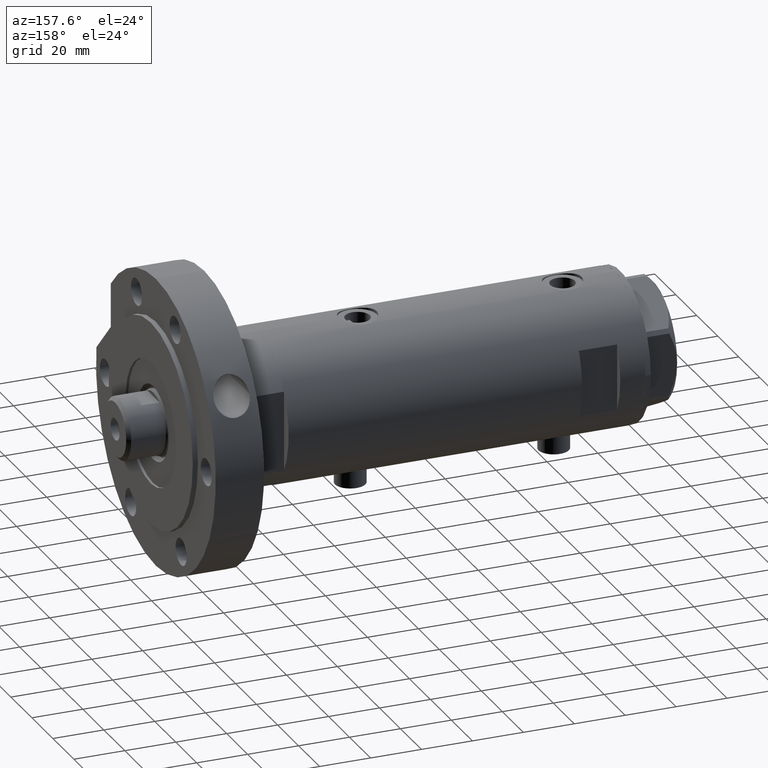
[diagram: clean part render]
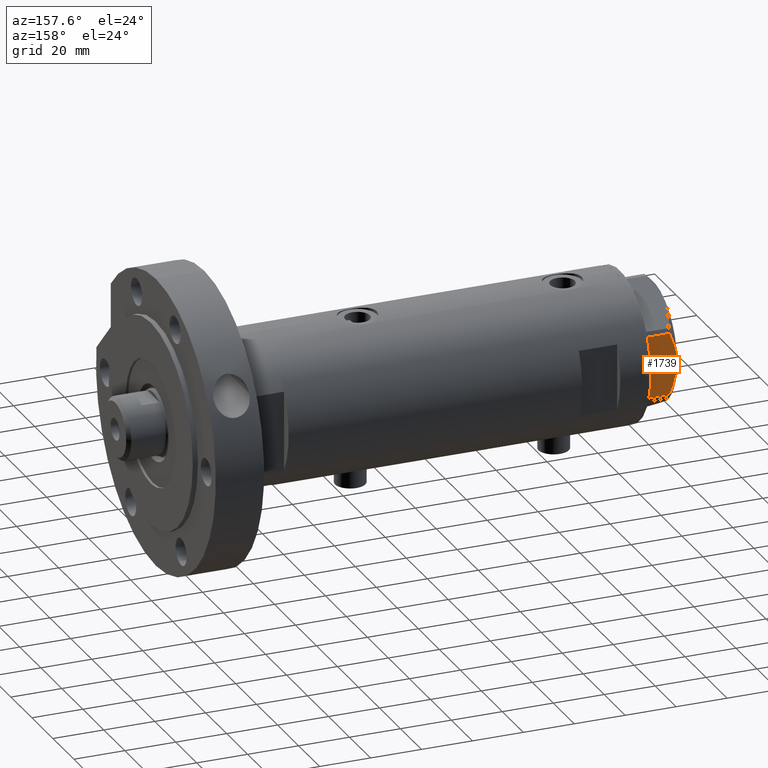
[diagram: same view with one face highlighted and labeled with its STEP entity id]
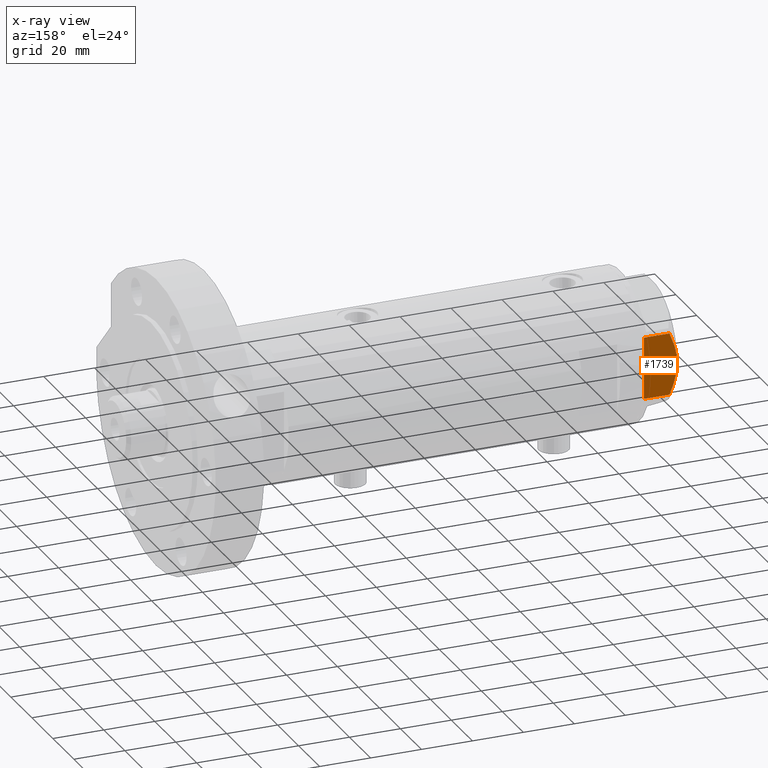
[diagram: x-ray of the same camera — body ghosted, the highlighted face saturated]
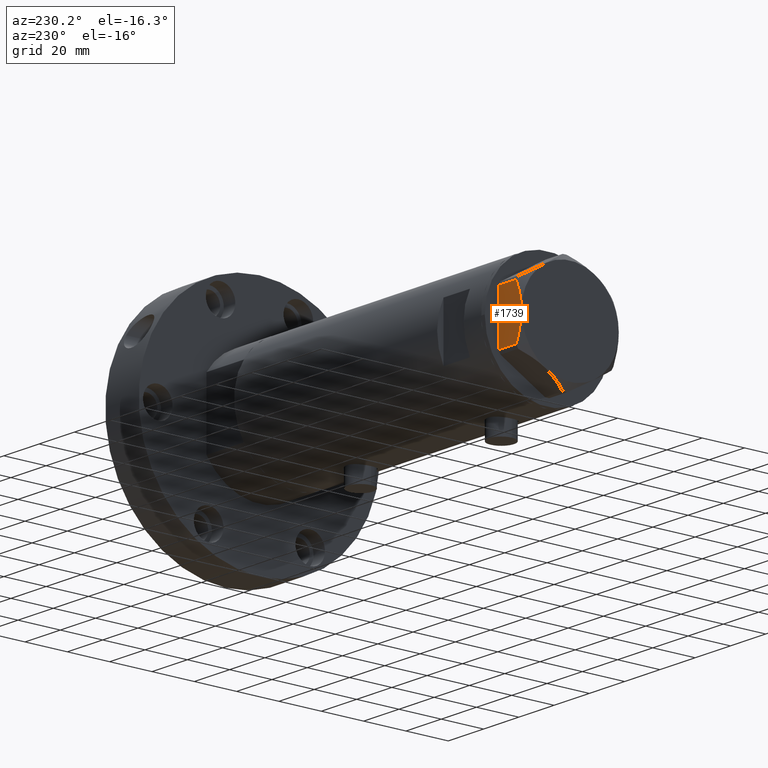
[diagram: same view with one face highlighted and labeled with its STEP entity id]
A machine part, auxiliary view. The second image highlights one B-rep face of the part: STEP entity #1739.
The next image is the same camera in x-ray: the body ghosted, the highlighted face saturated — about 0% of this face is hidden behind the body in this view.
A second angle (auxiliary view) of the same face is appended — the face is thin or edge-on in the first view.
In plain terms, the highlighted planar face has unit normal (0, -1, 0).
Its self-contained STEP definition (entity closure, byte-faithful):
#46 = DIRECTION ( 'NONE',  ( -1.032024811306395780E-14, 1.000000000000000000, 0.000000000000000000 ) ) ;
#336 = ORIENTED_EDGE ( 'NONE', *, *, #3817, .T. ) ;
#454 = CARTESIAN_POINT ( 'NONE',  ( 23.00000000000003197, -8.246028007352199651, 11.57113180864690705 ) ) ;
#523 = LINE ( 'NONE', #2908, #4741 ) ;
#551 = FACE_OUTER_BOUND ( 'NONE', #4671, .T. ) ;
#612 = CARTESIAN_POINT ( 'NONE',  ( 22.99999999999990052, 5.228918809624289565, 12.43333703384985256 ) ) ;
#832 = CARTESIAN_POINT ( 'NONE',  ( 23.00000000000007461, -12.15905619136117544, 9.983800287807614637 ) ) ;
#960 = VECTOR ( 'NONE', #1471, 1000.000000000000000 ) ;
#1054 = CARTESIAN_POINT ( 'NONE',  ( 22.99999999999994671, 0.5295934231899315225, 13.00000000000009770 ) ) ;
#1090 = CARTESIAN_POINT ( 'NONE',  ( 22.99999999999984723, 10.22738952213813590, 10.83247031367476687 ) ) ;
#1106 = DIRECTION ( 'NONE',  ( 1.032024811306395780E-14, -1.000000000000000000, 0.000000000000000000 ) ) ;
#1195 = B_SPLINE_CURVE_WITH_KNOTS ( 'NONE', 3,
 ( #5151, #1054, #2415, #4838, #5331, #5780, #612, #1956, #3432, #3836, #1090, #2968, #4867, #1637 ),
 .UNSPECIFIED., .F., .F.,
 ( 4, 2, 2, 2, 2, 2, 4 ),
 ( 0.04777139595992689614, 0.04934380568070229761, 0.05091621540147769215, 0.05406103484302849510, 0.05720585428457929111, 0.05877826400535468565, 0.06035067372613008713 ),
 .UNSPECIFIED. ) ;
#1280 = VERTEX_POINT ( 'NONE', #2342 ) ;
#1302 = VERTEX_POINT ( 'NONE', #2833 ) ;
#1429 = CARTESIAN_POINT ( 'NONE',  ( 22.99999999999982236, 12.15905619136166038, 9.983800287807609308 ) ) ;
#1471 = DIRECTION ( 'NONE',  ( 0.000000000000000000, 0.000000000000000000, 1.000000000000000000 ) ) ;
#1511 = EDGE_CURVE ( 'NONE', #3975, #2612, #4792, .T. ) ;
#1637 = CARTESIAN_POINT ( 'NONE',  ( 22.99999999999982236, 12.15905619136166038, 9.983800287807609308 ) ) ;
#1739 = ADVANCED_FACE ( 'NONE', ( #551 ), #5252, .F. ) ;
#1803 = CARTESIAN_POINT ( 'NONE',  ( 22.99999999999999289, -4.194757081058820170, 12.70300035152520479 ) ) ;
#1834 = CARTESIAN_POINT ( 'NONE',  ( 23.00000000000004263, -8.748091966971225375, 11.39681897828457124 ) ) ;
#1870 = VERTEX_POINT ( 'NONE', #4147 ) ;
#1933 = CARTESIAN_POINT ( 'NONE',  ( 23.00000000000008527, -13.27905619136115867, 13.00000000000000000 ) ) ;
#1956 = CARTESIAN_POINT ( 'NONE',  ( 22.99999999999987210, 7.253003311474555126, 11.90327681034763430 ) ) ;
#2267 = CARTESIAN_POINT ( 'NONE',  ( 22.99999999999995026, 2.373657066004705010E-13, 13.00000000000000000 ) ) ;
#2342 = CARTESIAN_POINT ( 'NONE',  ( 22.99999999999995026, 2.373657066004705010E-13, 13.00000000000000000 ) ) ;
#2415 = CARTESIAN_POINT ( 'NONE',  ( 22.99999999999993960, 1.063773509315898647, 12.98143808360683060 ) ) ;
#2612 = VERTEX_POINT ( 'NONE', #1429 ) ;
#2658 = ORIENTED_EDGE ( 'NONE', *, *, #1511, .T. ) ;
#2731 = CARTESIAN_POINT ( 'NONE',  ( 22.99999999999996447, -2.122900714017910584, 13.00000000000008882 ) ) ;
#2765 = CARTESIAN_POINT ( 'NONE',  ( 23.00000000000001421, -6.734330413511261604, 12.03938974125266448 ) ) ;
#2806 = EDGE_CURVE ( 'NONE', #1302, #1280, #5772, .T. ) ;
#2833 = CARTESIAN_POINT ( 'NONE',  ( 23.00000000000007461, -12.15905619136117544, 9.983800287807614637 ) ) ;
#2855 = DIRECTION ( 'NONE',  ( 0.000000000000000000, 0.000000000000000000, -1.000000000000000000 ) ) ;
#2908 = CARTESIAN_POINT ( 'NONE',  ( 23.00000000000007461, -12.15905619136117721, 13.00000000000000000 ) ) ;
#2968 = CARTESIAN_POINT ( 'NONE',  ( 22.99999999999984368, 11.20155944044835472, 10.42110268263274264 ) ) ;
#3321 = CARTESIAN_POINT ( 'NONE',  ( 22.99999999999982236, 12.15905619136166571, 0.000000000000000000 ) ) ;
#3432 = CARTESIAN_POINT ( 'NONE',  ( 22.99999999999986500, 8.252113629125442884, 11.58164206268022056 ) ) ;
#3451 = DIRECTION ( 'NONE',  ( -1.000000000000000000, -1.032024811306395780E-14, 0.000000000000000000 ) ) ;
#3612 = ORIENTED_EDGE ( 'NONE', *, *, #5970, .T. ) ;
#3817 = EDGE_CURVE ( 'NONE', #1870, #3975, #5669, .T. ) ;
#3827 = CARTESIAN_POINT ( 'NONE',  ( 22.99999999999982236, 12.15905619136166571, 13.00000000000000000 ) ) ;
#3836 = CARTESIAN_POINT ( 'NONE',  ( 22.99999999999985434, 9.734726261263476843, 11.02892470009566139 ) ) ;
#3918 = AXIS2_PLACEMENT_3D ( 'NONE', #1933, #3451, #1106 ) ;
#3975 = VERTEX_POINT ( 'NONE', #3321 ) ;
#4147 = CARTESIAN_POINT ( 'NONE',  ( 23.00000000000007461, -12.15905619136117721, 0.000000000000000000 ) ) ;
#4215 = CARTESIAN_POINT ( 'NONE',  ( 23.00000000000005684, -10.23890159976106240, 10.84081242829091529 ) ) ;
#4356 = EDGE_CURVE ( 'NONE', #1280, #2612, #1195, .T. ) ;
#4611 = ORIENTED_EDGE ( 'NONE', *, *, #2806, .F. ) ;
#4671 = EDGE_LOOP ( 'NONE', ( #4611, #3612, #336, #2658, #4708 ) ) ;
#4708 = ORIENTED_EDGE ( 'NONE', *, *, #4356, .F. ) ;
#4734 = VECTOR ( 'NONE', #46, 1000.000000000000000 ) ;
#4741 = VECTOR ( 'NONE', #2855, 1000.000000000000000 ) ;
#4750 = CARTESIAN_POINT ( 'NONE',  ( 23.00000000000008527, -13.27905619136115867, 0.000000000000000000 ) ) ;
#4792 = LINE ( 'NONE', #3827, #960 ) ;
#4838 = CARTESIAN_POINT ( 'NONE',  ( 22.99999999999992539, 2.119709279062088836, 12.90853521217320043 ) ) ;
#4867 = CARTESIAN_POINT ( 'NONE',  ( 22.99999999999982947, 11.68282849742354301, 10.20637235269540888 ) ) ;
#5094 = CARTESIAN_POINT ( 'NONE',  ( 23.00000000000002132, -7.239756182922042704, 11.89218606342284978 ) ) ;
#5151 = CARTESIAN_POINT ( 'NONE',  ( 22.99999999999995026, 2.373657066004705010E-13, 13.00000000000000000 ) ) ;
#5252 = PLANE ( 'NONE',  #3918 ) ;
#5331 = CARTESIAN_POINT ( 'NONE',  ( 22.99999999999992184, 2.643615312305319875, 12.85430456063626714 ) ) ;
#5669 = LINE ( 'NONE', #4750, #4734 ) ;
#5772 = B_SPLINE_CURVE_WITH_KNOTS ( 'NONE', 3,
 ( #832, #6052, #4215, #1834, #454, #5094, #2765, #1803, #2731, #2267 ),
 .UNSPECIFIED., .F., .F.,
 ( 4, 2, 2, 2, 4 ),
 ( 0.03516523594057416324, 0.03831677594541234994, 0.03989254594783143981, 0.04146831595025052969, 0.04777139595992689614 ),
 .UNSPECIFIED. ) ;
#5780 = CARTESIAN_POINT ( 'NONE',  ( 22.99999999999990763, 4.203926054642130872, 12.64168122312251263 ) ) ;
#5970 = EDGE_CURVE ( 'NONE', #1302, #1870, #523, .T. ) ;
#6052 = CARTESIAN_POINT ( 'NONE',  ( 23.00000000000006750, -11.20825071633899483, 10.42817330637845608 ) ) ;